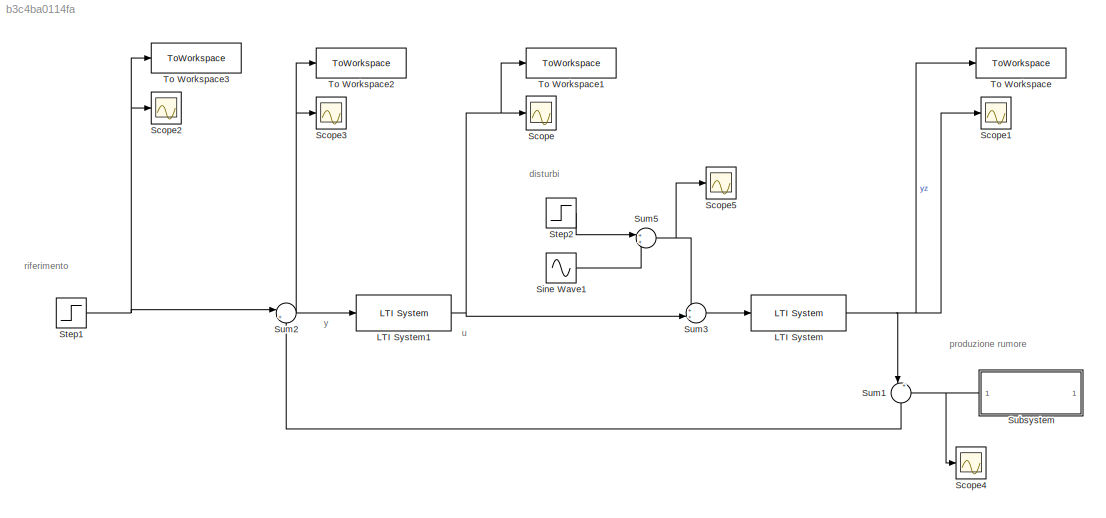
MODEL slx_b3c4ba0114fa
KIND model
CONFIG AbsTol = auto
CONFIG EnableMultiTasking = off
CONFIG FixedStep = auto
CONFIG MaxStep = auto
CONFIG MinStep = auto
CONFIG RelTol = 1e-3
CONFIG SampleTimeConstraint = Unconstrained
CONFIG SolverName = VariableStepAuto
CONFIG StartTime = 0.0
CONFIG StopTime = 100
BLOCK [Reference] LTI System  REF=cstblocks/LTI System
  SourceBlock = cstblocks/LTI System
  SourceType = LTI Block
BLOCK [Reference] LTI System1  REF=cstblocks/LTI System
  SourceBlock = cstblocks/LTI System
  SourceType = LTI Block
BLOCK [Scope] Scope
  Floating = off
  NumInputPorts = 1
  ScopeSpecificationString = Simulink.scopes.TimeScopeBlockCfg('CurrentConfiguration', extmgr.ConfigurationSet(extmgr.Configuration('Core','General UI',true),extmgr.Configuration('Core','Source UI',true),extmgr.Configuration('Sources','WiredSimulink',true),extmgr.Configuration('Visuals','Time Domain',true,'SerializedDisplays',{struct('MinYLimReal','-25.47216','MaxYLimReal','23.71408','YLabelReal','','MinYLimMag','0.00000','Ma...<+1426ch>
BLOCK [Scope] Scope1
  Floating = off
  NumInputPorts = 1
  ScopeSpecificationString = Simulink.scopes.TimeScopeBlockCfg('CurrentConfiguration', extmgr.ConfigurationSet(extmgr.Configuration('Core','General UI',true),extmgr.Configuration('Core','Source UI',true),extmgr.Configuration('Sources','WiredSimulink',true,'DataLoggingVariableName','ScopeData1'),extmgr.Configuration('Visuals','Time Domain',true,'SerializedDisplays',{struct('MinYLimReal','-0.04974','MaxYLimReal','0.14898','YLab...<+1450ch>
BLOCK [Scope] Scope2
  Floating = off
  NumInputPorts = 1
  ScopeSpecificationString = Simulink.scopes.TimeScopeBlockCfg('CurrentConfiguration', extmgr.ConfigurationSet(extmgr.Configuration('Core','General UI',true),extmgr.Configuration('Core','Source UI',true),extmgr.Configuration('Sources','WiredSimulink',true,'DataLoggingVariableName','ScopeData1'),extmgr.Configuration('Visuals','Time Domain',true,'SerializedDisplays',{struct('MinYLimReal','-0.625','MaxYLimReal','5.625','YLabelRe...<+1440ch>
BLOCK [Scope] Scope3
  Floating = off
  NumInputPorts = 1
  ScopeSpecificationString = Simulink.scopes.TimeScopeBlockCfg('CurrentConfiguration', extmgr.ConfigurationSet(extmgr.Configuration('Core','General UI',true),extmgr.Configuration('Core','Source UI',true),extmgr.Configuration('Sources','WiredSimulink',true,'DataLoggingVariableName','ScopeData3'),extmgr.Configuration('Visuals','Time Domain',true,'SerializedDisplays',{struct('MinYLimReal','-1.85579','MaxYLimReal','1.7105','YLabe...<+1450ch>
BLOCK [Scope] Scope4
  Floating = off
  NumInputPorts = 1
  ScopeSpecificationString = Simulink.scopes.TimeScopeBlockCfg('CurrentConfiguration', extmgr.ConfigurationSet(extmgr.Configuration('Core','General UI',true),extmgr.Configuration('Core','Source UI',true),extmgr.Configuration('Sources','WiredSimulink',true,'DataLoggingVariableName','ScopeData1'),extmgr.Configuration('Visuals','Time Domain',true),extmgr.Configuration('Tools','Plot Navigation',true),extmgr.Configuration('Tools',...<+40ch>
BLOCK [Scope] Scope5
  Floating = off
  NumInputPorts = 1
  ScopeSpecificationString = Simulink.scopes.TimeScopeBlockCfg('CurrentConfiguration', extmgr.ConfigurationSet(extmgr.Configuration('Core','General UI',true),extmgr.Configuration('Core','Source UI',true),extmgr.Configuration('Sources','WiredSimulink',true,'DataLoggingVariableName','ScopeData2'),extmgr.Configuration('Visuals','Time Domain',true,'SerializedDisplays',{struct('MinYLimReal','-0.125','MaxYLimReal','1.125','YLabelRe...<+1440ch>
BLOCK [Sin] Sine Wave1
  Amplitude = d_sinewave_amplitude
  Frequency = 2*pi*d_sinewave_frequency_Hz
  Phase = d_sinewave_phase_rad
  SampleTime = 0
BLOCK [Step] Step1
  After = reference_step_amplitude
  SampleTime = 0
  Time = reference_step_time
BLOCK [Step] Step2
  After = d_step_amplitude
  SampleTime = 0
  Time = d_step_time
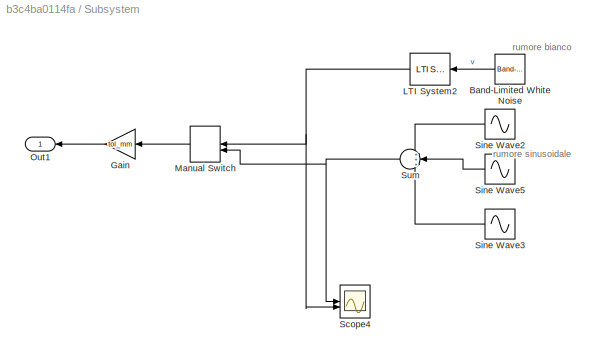
BLOCK [SubSystem] Subsystem
BLOCK [Reference] Subsystem/Band-Limited White Noise  REF=simulink/Sources/Band-Limited
White Noise
  SourceBlock = simulink/Sources/Band-Limited\nWhite Noise
  SourceType = Band-Limited White Noise.
BLOCK [Gain] Subsystem/Gain
  Gain = tol_mm
BLOCK [Reference] Subsystem/LTI System2  REF=cstblocks/LTI System
  SourceBlock = cstblocks/LTI System
  SourceType = LTI Block
BLOCK [ManualSwitch] Subsystem/Manual Switch
BLOCK [Outport] Subsystem/Out1
BLOCK [Scope] Subsystem/Scope4
  Floating = off
  NumInputPorts = 2
  ScopeSpecificationString = Simulink.scopes.TimeScopeBlockCfg('CurrentConfiguration', extmgr.ConfigurationSet(extmgr.Configuration('Core','General UI',true),extmgr.Configuration('Core','Source UI',true),extmgr.Configuration('Sources','WiredSimulink',true,'DataLoggingVariableName','ScopeData2'),extmgr.Configuration('Visuals','Time Domain',true,'SerializedDisplays',{struct('MinYLimReal','-0.00276','MaxYLimReal','0.00277','YLab...<+1492ch>
BLOCK [Sin] Subsystem/Sine Wave2
  Amplitude = power_v_noise * 10^6 * rand
  Frequency = f_inf_rads + (2*f_inf_rads - f_inf_rads) * rand;
  Phase = 2*pi*rand
  SampleTime = 0
BLOCK [Sin] Subsystem/Sine Wave3
  Amplitude = power_v_noise * 10^6 * rand
  Frequency = f_inf_rads + (2*f_inf_rads - f_inf_rads) * rand;
  Phase = 2*pi*rand
  SampleTime = 0
BLOCK [Sin] Subsystem/Sine Wave5
  Amplitude = power_v_noise * 10^6 * rand
  Frequency = f_inf_rads + (2*f_inf_rads - f_inf_rads) * rand;
  Phase = 2*pi*rand
  SampleTime = 0
BLOCK [Sum] Subsystem/Sum
  Inputs = +++
BLOCK [Sum] Sum1
  Inputs = |++
  NameLocation = right
BLOCK [Sum] Sum2
  Inputs = |+-
  NameLocation = top
BLOCK [Sum] Sum3
  Inputs = ++|
BLOCK [Sum] Sum5
BLOCK [ToWorkspace] To Workspace
  FixptAsFi = on
  MaxDataPoints = inf
  SampleTime = -1
  SaveFormat = Timeseries
  VariableName = yz
BLOCK [ToWorkspace] To Workspace1
  FixptAsFi = on
  MaxDataPoints = inf
  SampleTime = -1
  SaveFormat = Timeseries
  VariableName = u
BLOCK [ToWorkspace] To Workspace2
  FixptAsFi = on
  MaxDataPoints = inf
  SampleTime = -1
  SaveFormat = Timeseries
  VariableName = y
BLOCK [ToWorkspace] To Workspace3
  FixptAsFi = on
  MaxDataPoints = inf
  SampleTime = -1
  SaveFormat = Timeseries
  VariableName = rif
ANNOTATION (root): disturbi
ANNOTATION (root): produzione rumore
ANNOTATION (root): riferimento
ANNOTATION (root): u
ANNOTATION (root): y
ANNOTATION Subsystem: rumore bianco
ANNOTATION Subsystem: rumore sinusoidale
NET LTI System1:1 -> Scope:1, Sum3:2, To Workspace1:1
NET LTI System:1 -> Scope1:1, Sum1:1, To Workspace:1
LINE Sine Wave1:1 -> Sum5:2
NET Step1:1 -> Scope2:1, Sum2:1, To Workspace3:1
LINE Step2:1 -> Sum5:1
LINE Subsystem/Band-Limited White Noise:1 -> Subsystem/LTI System2:1
LINE Subsystem/Gain:1 -> Subsystem/Out1:1
NET Subsystem/LTI System2:1 -> Subsystem/Manual Switch:1, Subsystem/Scope4:2
LINE Subsystem/Manual Switch:1 -> Subsystem/Gain:1
LINE Subsystem/Sine Wave2:1 -> Subsystem/Sum:1
LINE Subsystem/Sine Wave3:1 -> Subsystem/Sum:3
LINE Subsystem/Sine Wave5:1 -> Subsystem/Sum:2
NET Subsystem/Sum:1 -> Subsystem/Manual Switch:2, Subsystem/Scope4:1
NET Subsystem:1 -> Scope4:1, Sum1:2
LINE Sum1:1 -> Sum2:2
NET Sum2:1 -> LTI System1:1, Scope3:1, To Workspace2:1
LINE Sum3:1 -> LTI System:1
NET Sum5:1 -> Scope5:1, Sum3:1
note: NET lines group one-source signal fan-out (src -> all destinations, sorted); 1:1 wires keep LINE
